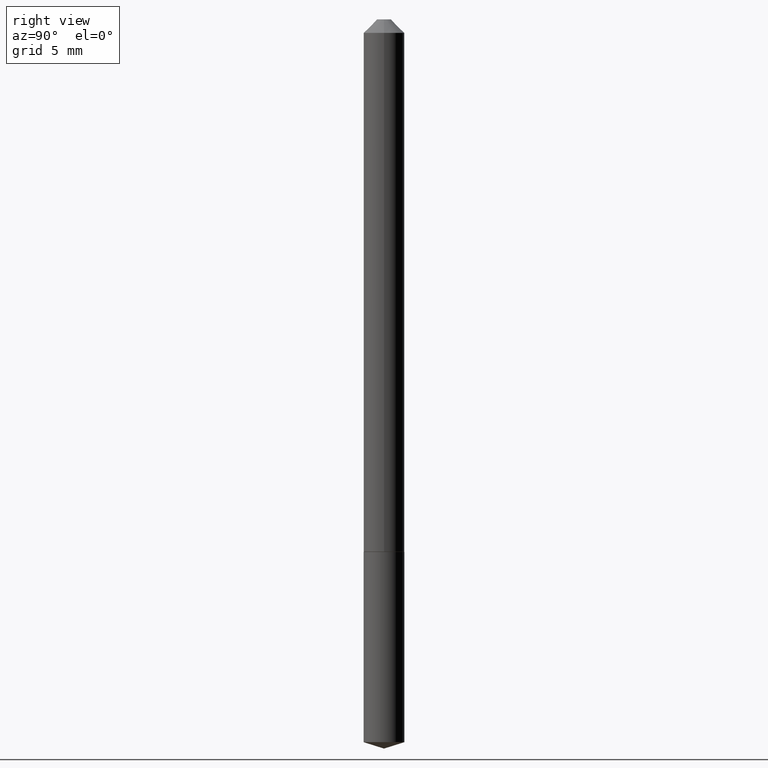
[diagram: clean part render]
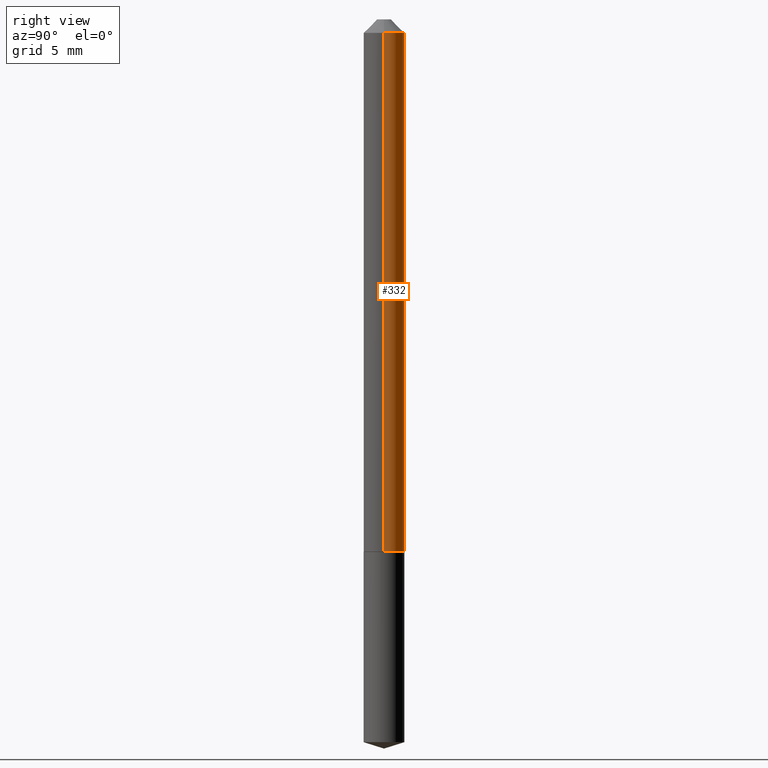
[diagram: same view with one face highlighted and labeled with its STEP entity id]
A machine part, right view. The second image highlights one B-rep face of the part: STEP entity #332.
In plain terms, the highlighted cylindrical surface (edge-blend (fillet) strip) has radius 1.2002 mm, axis along (-0, 0, 1).
Its self-contained STEP definition (entity closure, byte-faithful):
#14 = ORIENTED_EDGE ( 'NONE', *, *, #327, .F. ) ;
#37 = VERTEX_POINT ( 'NONE', #389 ) ;
#38 = EDGE_CURVE ( 'NONE', #97, #37, #161, .T. ) ;
#43 = AXIS2_PLACEMENT_3D ( 'NONE', #353, #144, #108 ) ;
#61 = LINE ( 'NONE', #231, #292 ) ;
#89 = DIRECTION ( 'NONE',  ( -2.445468806185136877E-29, 3.491481338843145188E-15, 1.000000000000000000 ) ) ;
#97 = VERTEX_POINT ( 'NONE', #284 ) ;
#103 = ORIENTED_EDGE ( 'NONE', *, *, #190, .T. ) ;
#108 = DIRECTION ( 'NONE',  ( 1.000000000000000000, -6.982962677686266711E-15, 0.000000000000000000 ) ) ;
#115 = DIRECTION ( 'NONE',  ( -2.445468806185136597E-29, 3.491481338843145583E-15, 1.000000000000000000 ) ) ;
#118 = VECTOR ( 'NONE', #243, 39.37007874015748143 ) ;
#128 = CIRCLE ( 'NONE', #371, 0.04725000000000015299 ) ;
#144 = DIRECTION ( 'NONE',  ( -2.445468806185136597E-29, 3.491481338843145583E-15, 1.000000000000000000 ) ) ;
#151 = VERTEX_POINT ( 'NONE', #355 ) ;
#161 = CIRCLE ( 'NONE', #43, 0.04725000000000000727 ) ;
#179 = LINE ( 'NONE', #300, #118 ) ;
#188 = AXIS2_PLACEMENT_3D ( 'NONE', #213, #342, #345 ) ;
#190 = EDGE_CURVE ( 'NONE', #244, #151, #128, .T. ) ;
#204 = ORIENTED_EDGE ( 'NONE', *, *, #224, .T. ) ;
#206 = DIRECTION ( 'NONE',  ( 1.000000000000000000, -6.982962677686264344E-15, 0.000000000000000000 ) ) ;
#213 = CARTESIAN_POINT ( 'NONE',  ( 0.000000000000000000, 0.000000000000000000, 0.000000000000000000 ) ) ;
#219 = CYLINDRICAL_SURFACE ( 'NONE', #188, 0.04725000000000006972 ) ;
#224 = EDGE_CURVE ( 'NONE', #151, #37, #61, .T. ) ;
#227 = EDGE_LOOP ( 'NONE', ( #103, #204, #343, #14 ) ) ;
#231 = CARTESIAN_POINT ( 'NONE',  ( -0.04725000000000006972, 3.357314426466478332E-16, -2.324196830145446318E-30 ) ) ;
#243 = DIRECTION ( 'NONE',  ( -2.445468806185136877E-29, 3.491481338843145188E-15, 1.000000000000000000 ) ) ;
#244 = VERTEX_POINT ( 'NONE', #323 ) ;
#284 = CARTESIAN_POINT ( 'NONE',  ( 0.04725000000000000727, -4.390537783595251574E-16, -0.03125000000000020817 ) ) ;
#292 = VECTOR ( 'NONE', #89, 39.37007874015748143 ) ;
#300 = CARTESIAN_POINT ( 'NONE',  ( 0.04725000000000006972, -3.299449865206765991E-16, 2.303993526563583334E-30 ) ) ;
#305 = CARTESIAN_POINT ( 'NONE',  ( 3.021865803802974359E-29, -4.314423490408476680E-15, -1.235700000000000465 ) ) ;
#323 = CARTESIAN_POINT ( 'NONE',  ( 0.04725000000000015299, -4.644368476929153477E-15, -1.235700000000000465 ) ) ;
#327 = EDGE_CURVE ( 'NONE', #244, #97, #179, .T. ) ;
#332 = ADVANCED_FACE ( 'NONE', ( #368 ), #219, .T. ) ;
#342 = DIRECTION ( 'NONE',  ( -2.445468806185136597E-29, 3.491481338843145583E-15, 1.000000000000000000 ) ) ;
#343 = ORIENTED_EDGE ( 'NONE', *, *, #38, .F. ) ;
#345 = DIRECTION ( 'NONE',  ( 1.000000000000000000, -6.982962677686266711E-15, 4.876176775795936353E-29 ) ) ;
#353 = CARTESIAN_POINT ( 'NONE',  ( 7.642090019328602662E-31, -1.091087918388490267E-16, -0.03125000000000020817 ) ) ;
#355 = CARTESIAN_POINT ( 'NONE',  ( -0.04725000000000015299, -3.978692047761827664E-15, -1.235700000000000465 ) ) ;
#368 = FACE_OUTER_BOUND ( 'NONE', #227, .T. ) ;
#371 = AXIS2_PLACEMENT_3D ( 'NONE', #305, #115, #206 ) ;
#389 = CARTESIAN_POINT ( 'NONE',  ( -0.04725000000000000727, -1.876034698477013480E-15, -0.03125000000000020817 ) ) ;